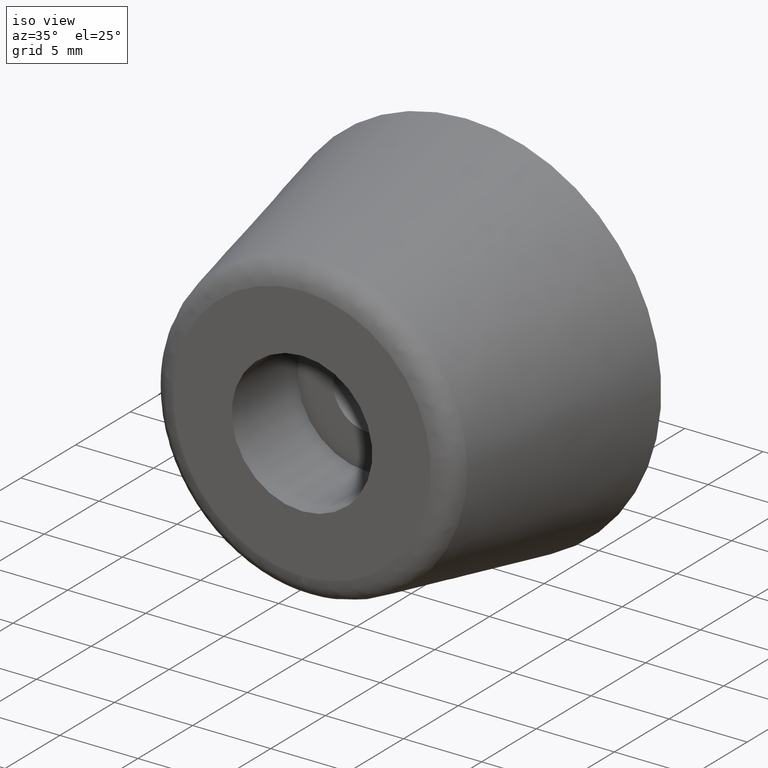
[diagram: clean part render]
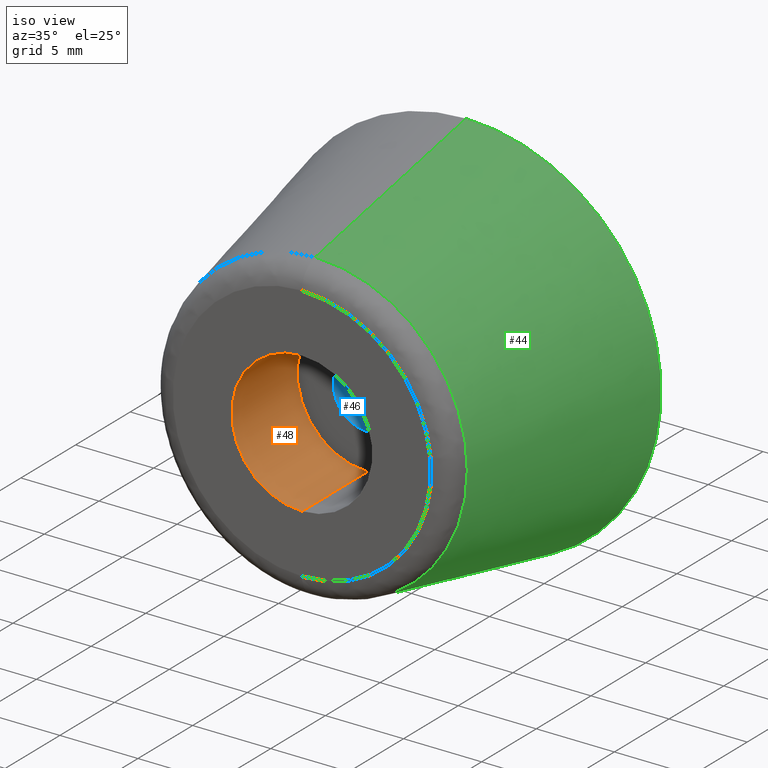
[diagram: same view with three faces highlighted in distinct colors, each labeled with its STEP entity id]
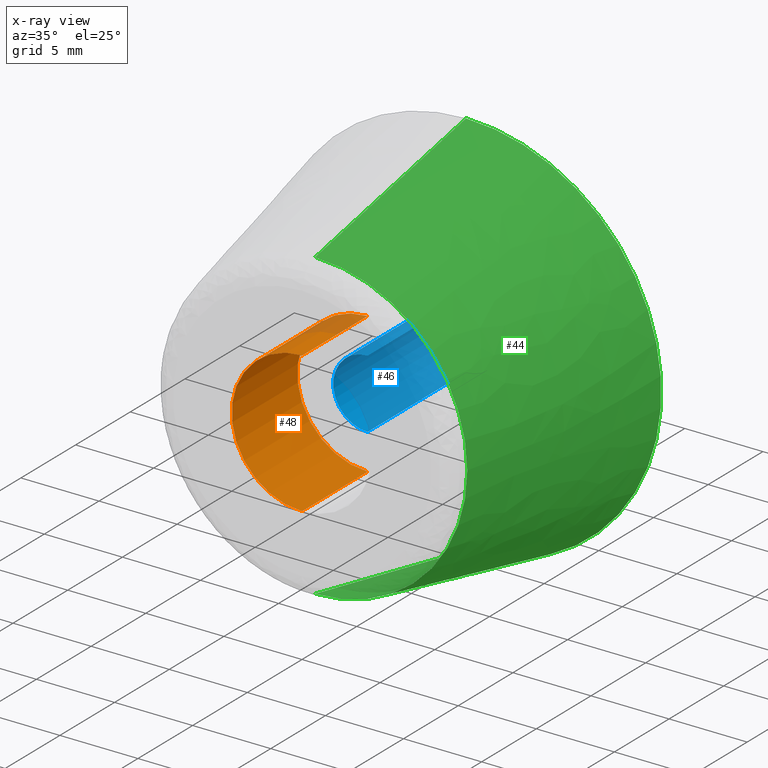
[diagram: x-ray of the same camera — body ghosted, the three highlighted faces saturated]
A machine part, iso view with three faces highlighted in distinct colors.
The next image is the same camera in x-ray (body ghosted, the three faces saturated) — at least one of them is partly hidden behind the body in this view.
Their STEP definitions:

[orange] entity #48 — the highlighted cylindrical surface (partial cylindrical patch) has radius 4.5 mm, axis along (-0, 1, 0).
#48=ADVANCED_FACE('',(#135),#134,.F.);
#134=CYLINDRICAL_SURFACE('',#222,4.50000000000E+00);
#135=FACE_OUTER_BOUND('',#223,.T.);
#219=CARTESIAN_POINT('',(2.13162820728E-14,0.00000000000E+00,0.00000000000E+00));
#220=DIRECTION('',(-0.00000000000E+00,1.00000000000E+00,0.00000000000E+00));
#221=DIRECTION('',(-0.00000000000E+00,-0.00000000000E+00,1.00000000000E+00));
#222=AXIS2_PLACEMENT_3D('',#219,#220,#221);
#223=EDGE_LOOP('',(#308,#309,#310,#311));
#308=ORIENTED_EDGE('',*,*,#325,.F.);
#309=ORIENTED_EDGE('',*,*,#338,.F.);
#310=ORIENTED_EDGE('',*,*,#330,.T.);
#311=ORIENTED_EDGE('',*,*,#339,.T.);
#325=EDGE_CURVE('',#371,#370,#378,.T.);
#330=EDGE_CURVE('',#412,#413,#414,.T.);
#338=EDGE_CURVE('',#412,#371,#464,.T.);
#339=EDGE_CURVE('',#413,#370,#470,.T.);
#370=VERTEX_POINT('',#508);
#371=VERTEX_POINT('',#509);
#378=CIRCLE('',#517,4.50000000000E+00);
#412=VERTEX_POINT('',#538);
#413=VERTEX_POINT('',#539);
#414=CIRCLE('',#543,4.50000000000E+00);
#464=(BOUNDED_CURVE() B_SPLINE_CURVE(1,(#566,#567),.UNSPECIFIED.,.F.,.F.) B_SPLINE_CURVE_WITH_KNOTS((2,2),(8.33333347523E-02,9.16666668865E-01),.UNSPECIFIED.) CURVE() GEOMETRIC_REPRESENTATION_ITEM() RATIONAL_B_SPLINE_CURVE((1.00000000000E+00,1.00000000000E+00)) REPRESENTATION_ITEM('') );
#470=(BOUNDED_CURVE() B_SPLINE_CURVE(1,(#568,#569),.UNSPECIFIED.,.F.,.F.) B_SPLINE_CURVE_WITH_KNOTS((2,2),(8.33333333333E-02,9.16666666667E-01),.UNSPECIFIED.) CURVE() GEOMETRIC_REPRESENTATION_ITEM() RATIONAL_B_SPLINE_CURVE((7.50000000000E-01,7.50000000000E-01)) REPRESENTATION_ITEM('') );
#508=CARTESIAN_POINT('',(2.13162820728E-14,-9.00000000000E+00,-4.50000000000E+00));
#509=CARTESIAN_POINT('',(2.16123415460E-14,-9.00000000000E+00,4.50000000000E+00));
#514=CARTESIAN_POINT('',(2.13162820728E-14,-9.00000000000E+00,0.00000000000E+00));
#515=DIRECTION('',(0.00000000000E+00,-1.00000000000E+00,-0.00000000000E+00));
#516=DIRECTION('',(-1.22460635382E-16,0.00000000000E+00,-1.00000000000E+00));
#517=AXIS2_PLACEMENT_3D('',#514,#515,#516);
#538=CARTESIAN_POINT('',(2.16123415460E-14,-1.50000000000E+01,4.50000000000E+00));
#539=CARTESIAN_POINT('',(2.13162820728E-14,-1.50000000000E+01,-4.50000000000E+00));
#540=CARTESIAN_POINT('',(2.13162820728E-14,-1.50000000000E+01,0.00000000000E+00));
#541=DIRECTION('',(0.00000000000E+00,-1.00000000000E+00,-0.00000000000E+00));
#542=DIRECTION('',(-1.22460635382E-16,0.00000000000E+00,-1.00000000000E+00));
#543=AXIS2_PLACEMENT_3D('',#540,#541,#542);
#566=CARTESIAN_POINT('',(2.13162820728E-14,-1.49999999898E+01,4.50000000000E+00));
#567=CARTESIAN_POINT('',(2.13162820728E-14,-8.99999998417E+00,4.50000000000E+00));
#568=CARTESIAN_POINT('',(2.10202225996E-14,-1.50000000000E+01,-4.50000000000E+00));
#569=CARTESIAN_POINT('',(2.10202225996E-14,-9.00000000000E+00,-4.50000000000E+00));

[blue] entity #46 — the highlighted cylindrical surface (partial cylindrical patch) has radius 2.2 mm, axis along (-0, 1, 0).
#46=ADVANCED_FACE('',(#115),#114,.F.);
#114=CYLINDRICAL_SURFACE('',#212,2.20000000000E+00);
#115=FACE_OUTER_BOUND('',#213,.T.);
#209=CARTESIAN_POINT('',(2.13162820728E-14,0.00000000000E+00,0.00000000000E+00));
#210=DIRECTION('',(-0.00000000000E+00,1.00000000000E+00,0.00000000000E+00));
#211=DIRECTION('',(-0.00000000000E+00,-0.00000000000E+00,1.00000000000E+00));
#212=AXIS2_PLACEMENT_3D('',#209,#210,#211);
#213=EDGE_LOOP('',(#300,#301,#302,#303));
#300=ORIENTED_EDGE('',*,*,#323,.F.);
#301=ORIENTED_EDGE('',*,*,#336,.F.);
#302=ORIENTED_EDGE('',*,*,#326,.T.);
#303=ORIENTED_EDGE('',*,*,#337,.T.);
#323=EDGE_CURVE('',#357,#356,#364,.T.);
#326=EDGE_CURVE('',#384,#385,#386,.T.);
#336=EDGE_CURVE('',#384,#357,#452,.T.);
#337=EDGE_CURVE('',#385,#356,#458,.T.);
#356=VERTEX_POINT('',#498);
#357=VERTEX_POINT('',#499);
#364=CIRCLE('',#507,2.20000000000E+00);
#384=VERTEX_POINT('',#518);
#385=VERTEX_POINT('',#519);
#386=CIRCLE('',#523,2.20000000000E+00);
#452=(BOUNDED_CURVE() B_SPLINE_CURVE(1,(#562,#563),.UNSPECIFIED.,.F.,.F.) B_SPLINE_CURVE_WITH_KNOTS((2,2),(8.33333343261E-02,9.16666664274E-01),.UNSPECIFIED.) CURVE() GEOMETRIC_REPRESENTATION_ITEM() RATIONAL_B_SPLINE_CURVE((1.00000000000E+00,1.00000000000E+00)) REPRESENTATION_ITEM('') );
#458=(BOUNDED_CURVE() B_SPLINE_CURVE(1,(#564,#565),.UNSPECIFIED.,.F.,.F.) B_SPLINE_CURVE_WITH_KNOTS((2,2),(8.33333333333E-02,9.16666666667E-01),.UNSPECIFIED.) CURVE() GEOMETRIC_REPRESENTATION_ITEM() RATIONAL_B_SPLINE_CURVE((7.50000000000E-01,7.50000000000E-01)) REPRESENTATION_ITEM('') );
#498=CARTESIAN_POINT('',(2.13162820728E-14,0.00000000000E+00,-2.20000000000E+00));
#499=CARTESIAN_POINT('',(2.14643118094E-14,0.00000000000E+00,2.20000000000E+00));
#504=CARTESIAN_POINT('',(2.13162820728E-14,0.00000000000E+00,0.00000000000E+00));
#505=DIRECTION('',(0.00000000000E+00,-1.00000000000E+00,-0.00000000000E+00));
#506=DIRECTION('',(-1.22460635382E-16,0.00000000000E+00,-1.00000000000E+00));
#507=AXIS2_PLACEMENT_3D('',#504,#505,#506);
#518=CARTESIAN_POINT('',(2.14643118094E-14,-9.00000000000E+00,2.20000000000E+00));
#519=CARTESIAN_POINT('',(2.13162820728E-14,-9.00000000000E+00,-2.20000000000E+00));
#520=CARTESIAN_POINT('',(2.13162820728E-14,-9.00000000000E+00,0.00000000000E+00));
#521=DIRECTION('',(0.00000000000E+00,-1.00000000000E+00,-0.00000000000E+00));
#522=DIRECTION('',(-1.22460635382E-16,0.00000000000E+00,-1.00000000000E+00));
#523=AXIS2_PLACEMENT_3D('',#520,#521,#522);
#562=CARTESIAN_POINT('',(2.13162820728E-14,-8.99999998928E+00,2.20000000000E+00));
#563=CARTESIAN_POINT('',(2.13162820728E-14,-2.58405261633E-08,2.20000000000E+00));
#564=CARTESIAN_POINT('',(2.11682523362E-14,-9.00000000000E+00,-2.20000000000E+00));
#565=CARTESIAN_POINT('',(2.11682523362E-14,1.48029736617E-16,-2.20000000000E+00));

[green] entity #44 — the highlighted face is a freeform B-spline surface patch.
#44=ADVANCED_FACE('',(#95),#94,.T.);
#94=( BOUNDED_SURFACE() B_SPLINE_SURFACE( 2,1,((#193,#194),(#195,#196),(#197,#198),(#199,#200),(#201,#202)), .UNSPECIFIED.,.F.,.F.,.F.) B_SPLINE_SURFACE_WITH_KNOTS((3,2,3),(2,2),(0.00000000000E+00,5.00000000000E-01,1.00000000000E+00),(0.00000000000E+00,1.00000000000E+00), .UNSPECIFIED. ) GEOMETRIC_REPRESENTATION_ITEM() RATIONAL_B_SPLINE_SURFACE(((1.00000000000E+00,1.00000000000E+00),(7.07106781187E-01,7.07106781187E-01),(1.00000000000E+00,1.00000000000E+00),(7.07106781187E-01,7.07106781187E-01),(1.00000000000E+00,1.00000000000E+00))) REPRESENTATION_ITEM('') SURFACE() );
#95=FACE_OUTER_BOUND('',#203,.T.);
#193=CARTESIAN_POINT('',(2.25092307461E-14,-1.37941742027E+01,9.74116515946E+00));
#194=CARTESIAN_POINT('',(2.28470905717E-14,0.00000000000E+00,1.25000000000E+01));
#195=CARTESIAN_POINT('',(9.74116515946E+00,-1.37941742027E+01,9.74116515946E+00));
#196=CARTESIAN_POINT('',(1.25000000000E+01,0.00000000000E+00,1.25000000000E+01));
#197=CARTESIAN_POINT('',(9.74116515946E+00,-1.37941742027E+01,-5.96474336625E-16));
#198=CARTESIAN_POINT('',(1.25000000000E+01,0.00000000000E+00,-7.65404249467E-16));
#199=CARTESIAN_POINT('',(9.74116515946E+00,-1.37941742027E+01,-9.74116515946E+00));
#200=CARTESIAN_POINT('',(1.25000000000E+01,0.00000000000E+00,-1.25000000000E+01));
#201=CARTESIAN_POINT('',(2.13162820728E-14,-1.37941742027E+01,-9.74116515946E+00));
#202=CARTESIAN_POINT('',(2.13162820728E-14,0.00000000000E+00,-1.25000000000E+01));
#203=EDGE_LOOP('',(#292,#293,#294,#295));
#292=ORIENTED_EDGE('',*,*,#335,.F.);
#293=ORIENTED_EDGE('',*,*,#332,.T.);
#294=ORIENTED_EDGE('',*,*,#321,.T.);
#295=ORIENTED_EDGE('',*,*,#334,.F.);
#321=EDGE_CURVE('',#343,#342,#350,.T.);
#332=EDGE_CURVE('',#426,#343,#427,.T.);
#334=EDGE_CURVE('',#433,#342,#440,.T.);
#335=EDGE_CURVE('',#426,#433,#446,.T.);
#342=VERTEX_POINT('',#488);
#343=VERTEX_POINT('',#489);
#350=CIRCLE('',#497,1.25000000000E+01);
#426=VERTEX_POINT('',#548);
#427=(BOUNDED_CURVE() B_SPLINE_CURVE(1,(#549,#550),.UNSPECIFIED.,.F.,.F.) B_SPLINE_CURVE_WITH_KNOTS((2,2),(0.00000000000E+00,1.00000000000E+00),.UNSPECIFIED.) CURVE() GEOMETRIC_REPRESENTATION_ITEM() RATIONAL_B_SPLINE_CURVE((1.00000000000E+00,1.00000000000E+00)) REPRESENTATION_ITEM('') );
#433=VERTEX_POINT('',#551);
#440=(BOUNDED_CURVE() B_SPLINE_CURVE(1,(#556,#557),.UNSPECIFIED.,.F.,.F.) B_SPLINE_CURVE_WITH_KNOTS((2,2),(0.00000000000E+00,1.00000000000E+00),.UNSPECIFIED.) CURVE() GEOMETRIC_REPRESENTATION_ITEM() RATIONAL_B_SPLINE_CURVE((7.50000000000E-01,7.50000000000E-01)) REPRESENTATION_ITEM('') );
#446=CIRCLE('',#561,9.74116515946E+00);
#488=CARTESIAN_POINT('',(2.07241631263E-14,0.00000000000E+00,1.25000000000E+01));
#489=CARTESIAN_POINT('',(2.13162820728E-14,0.00000000000E+00,-1.25000000000E+01));
#494=CARTESIAN_POINT('',(2.13162820728E-14,0.00000000000E+00,0.00000000000E+00));
#495=DIRECTION('',(0.00000000000E+00,-1.00000000000E+00,-0.00000000000E+00));
#496=DIRECTION('',(-1.22460635382E-16,0.00000000000E+00,-1.00000000000E+00));
#497=AXIS2_PLACEMENT_3D('',#494,#495,#496);
#548=CARTESIAN_POINT('',(2.13162820728E-14,-1.37941742027E+01,-9.74116515946E+00));
#549=CARTESIAN_POINT('',(1.89304635232E-14,-1.37941742027E+01,-9.74116515946E+00));
#550=CARTESIAN_POINT('',(1.82547661882E-14,0.00000000000E+00,-1.25000000000E+01));
#551=CARTESIAN_POINT('',(2.13162820728E-14,-1.37941742027E+01,9.74116515946E+00));
#556=CARTESIAN_POINT('',(2.48689957516E-14,-1.37941742027E+01,9.74116515946E+00));
#557=CARTESIAN_POINT('',(2.54611146981E-14,0.00000000000E+00,1.25000000000E+01));
#558=CARTESIAN_POINT('',(2.13162820728E-14,-1.37941742027E+01,0.00000000000E+00));
#559=DIRECTION('',(0.00000000000E+00,-1.00000000000E+00,-0.00000000000E+00));
#560=DIRECTION('',(-1.22460635382E-16,0.00000000000E+00,-1.00000000000E+00));
#561=AXIS2_PLACEMENT_3D('',#558,#559,#560);